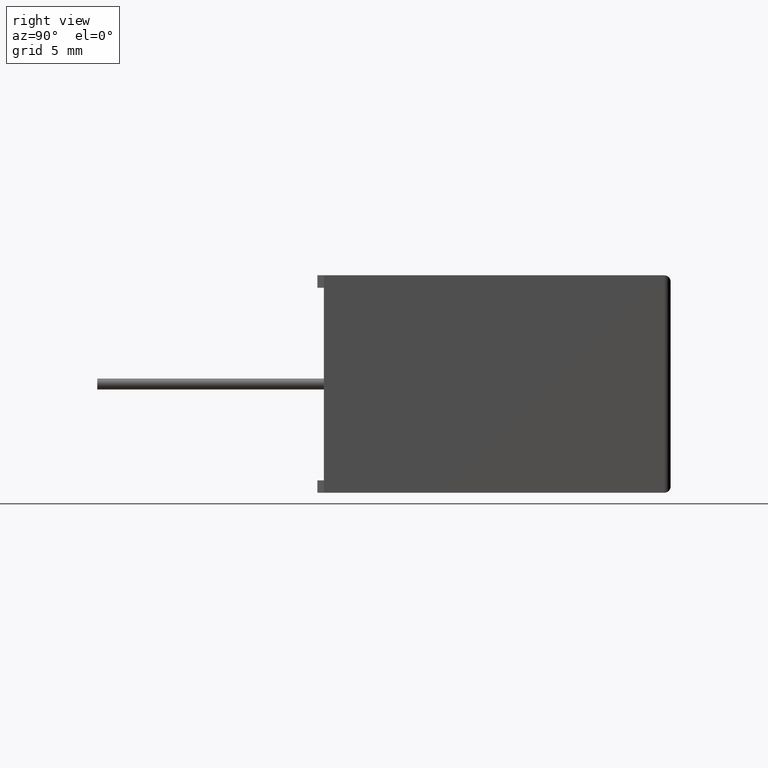
[diagram: clean part render]
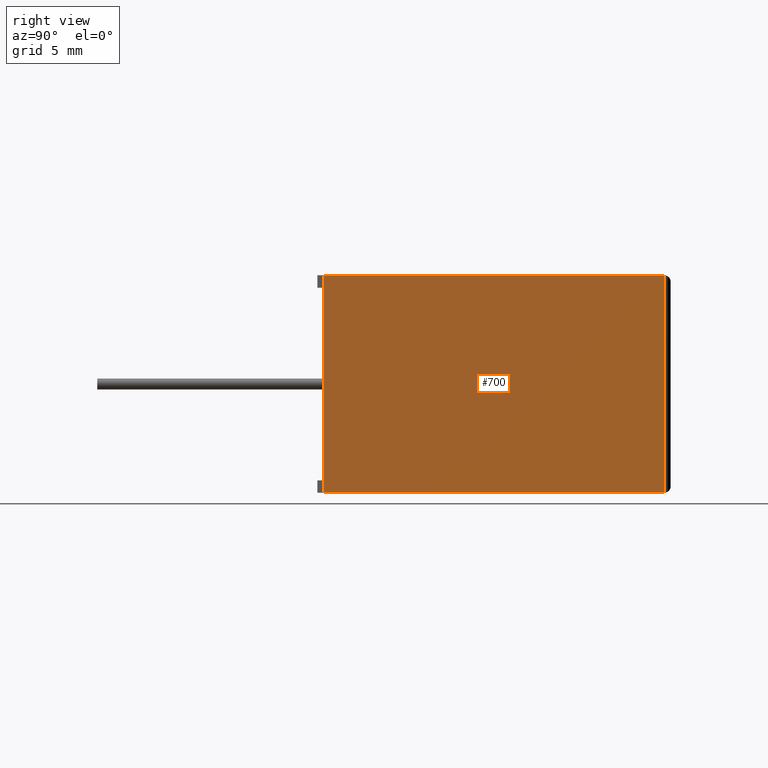
[diagram: same view with one face highlighted and labeled with its STEP entity id]
A machine part, right view. The second image highlights one B-rep face of the part: STEP entity #700.
In plain terms, the highlighted planar face has unit normal (-1, 0, 0).
Its self-contained STEP definition (entity closure, byte-faithful):
#2 = CARTESIAN_POINT ( 'NONE',  ( 30.80000000000000100, 0.0000000000000000000, 16.80000000000000100 ) ) ;
#99 = EDGE_LOOP ( 'NONE', ( #1742, #508, #2073, #801 ) ) ;
#253 = EDGE_CURVE ( 'NONE', #2493, #2957, #1932, .T. ) ;
#297 = CARTESIAN_POINT ( 'NONE',  ( 30.80000000000000100, 0.0000000000000000000, 0.0000000000000000000 ) ) ;
#501 = DIRECTION ( 'NONE',  ( 0.0000000000000000000, 0.0000000000000000000, 1.000000000000000000 ) ) ;
#508 = ORIENTED_EDGE ( 'NONE', *, *, #253, .T. ) ;
#548 = CARTESIAN_POINT ( 'NONE',  ( 30.80000000000000100, 26.30000000000000100, 0.0000000000000000000 ) ) ;
#569 = VERTEX_POINT ( 'NONE', #2225 ) ;
#573 = EDGE_CURVE ( 'NONE', #2766, #2493, #985, .T. ) ;
#656 = EDGE_CURVE ( 'NONE', #569, #2957, #2742, .T. ) ;
#664 = AXIS2_PLACEMENT_3D ( 'NONE', #2, #2978, #501 ) ;
#699 = EDGE_CURVE ( 'NONE', #569, #2766, #1580, .T. ) ;
#700 = ADVANCED_FACE ( 'NONE', ( #2517 ), #2726, .F. ) ;
#801 = ORIENTED_EDGE ( 'NONE', *, *, #699, .T. ) ;
#881 = CARTESIAN_POINT ( 'NONE',  ( 30.80000000000000100, 26.30000000000000100, 16.80000000000000100 ) ) ;
#985 = LINE ( 'NONE', #1970, #1584 ) ;
#1076 = DIRECTION ( 'NONE',  ( -0.0000000000000000000, -0.0000000000000000000, 1.000000000000000000 ) ) ;
#1139 = VECTOR ( 'NONE', #1076, 1000.000000000000000 ) ;
#1261 = DIRECTION ( 'NONE',  ( -0.0000000000000000000, -0.0000000000000000000, -1.000000000000000000 ) ) ;
#1580 = LINE ( 'NONE', #2489, #2935 ) ;
#1584 = VECTOR ( 'NONE', #2421, 1000.000000000000000 ) ;
#1742 = ORIENTED_EDGE ( 'NONE', *, *, #573, .T. ) ;
#1923 = CARTESIAN_POINT ( 'NONE',  ( 30.80000000000000100, 0.0000000000000000000, 16.80000000000000100 ) ) ;
#1932 = LINE ( 'NONE', #2339, #1139 ) ;
#1970 = CARTESIAN_POINT ( 'NONE',  ( 30.80000000000000100, 0.0000000000000000000, 0.0000000000000000000 ) ) ;
#2073 = ORIENTED_EDGE ( 'NONE', *, *, #656, .F. ) ;
#2225 = CARTESIAN_POINT ( 'NONE',  ( 30.80000000000000100, 0.0000000000000000000, 16.80000000000000100 ) ) ;
#2261 = VECTOR ( 'NONE', #2673, 1000.000000000000000 ) ;
#2339 = CARTESIAN_POINT ( 'NONE',  ( 30.80000000000000100, 26.30000000000000100, 16.80000000000000100 ) ) ;
#2421 = DIRECTION ( 'NONE',  ( 0.0000000000000000000, 1.000000000000000000, 0.0000000000000000000 ) ) ;
#2489 = CARTESIAN_POINT ( 'NONE',  ( 30.80000000000000100, 0.0000000000000000000, 16.80000000000000100 ) ) ;
#2493 = VERTEX_POINT ( 'NONE', #548 ) ;
#2517 = FACE_OUTER_BOUND ( 'NONE', #99, .T. ) ;
#2673 = DIRECTION ( 'NONE',  ( 0.0000000000000000000, 1.000000000000000000, 0.0000000000000000000 ) ) ;
#2726 = PLANE ( 'NONE',  #664 ) ;
#2742 = LINE ( 'NONE', #1923, #2261 ) ;
#2766 = VERTEX_POINT ( 'NONE', #297 ) ;
#2935 = VECTOR ( 'NONE', #1261, 1000.000000000000000 ) ;
#2957 = VERTEX_POINT ( 'NONE', #881 ) ;
#2978 = DIRECTION ( 'NONE',  ( -1.000000000000000000, 0.0000000000000000000, 0.0000000000000000000 ) ) ;